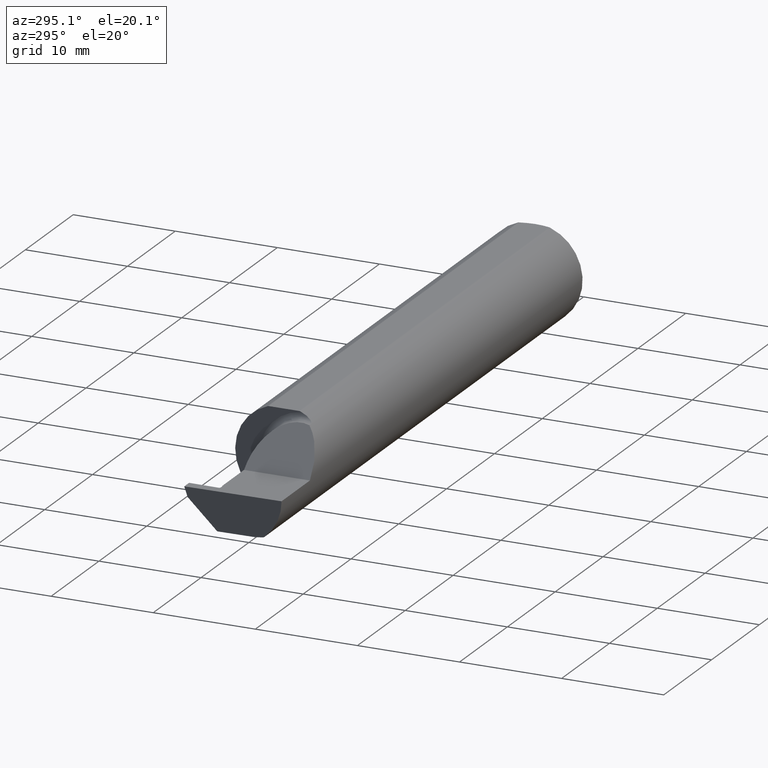
[diagram: clean part render]
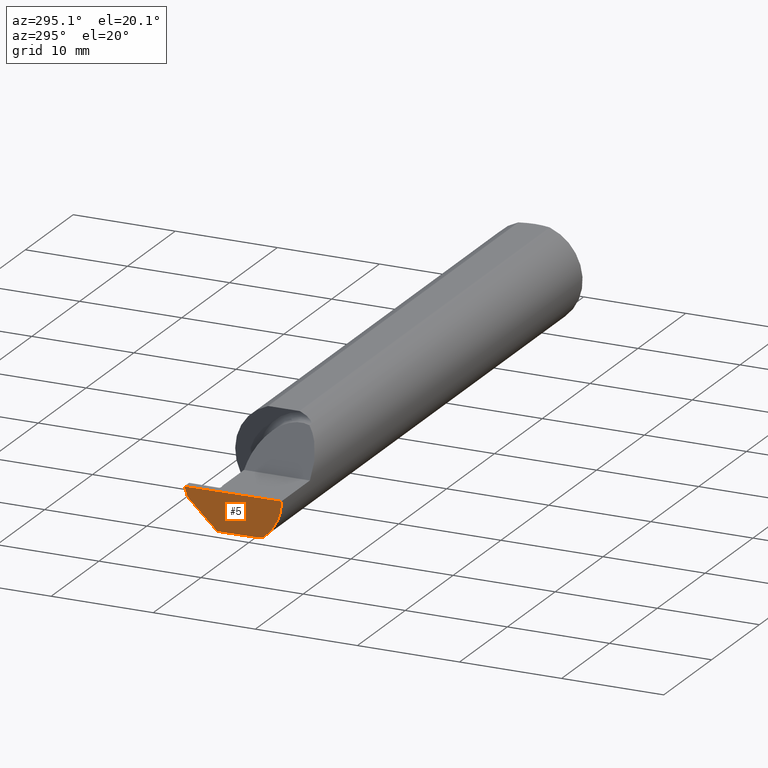
[diagram: same view with one face highlighted and labeled with its STEP entity id]
A machine part, auxiliary view. The second image highlights one B-rep face of the part: STEP entity #5.
In plain terms, the highlighted planar face has unit normal (0.9995, 0.0174, 0.0262).
Its self-contained STEP definition (entity closure, byte-faithful):
#5 = ADVANCED_FACE ( 'NONE', ( #96 ), #616, .F. ) ;
#10 = EDGE_CURVE ( 'NONE', #87, #370, #352, .T. ) ;
#38 = DIRECTION ( 'NONE',  ( 0.01745240643727703073, -0.9998476951563912696, 0.000000000000000000 ) ) ;
#39 = EDGE_CURVE ( 'NONE', #147, #582, #898, .T. ) ;
#43 = VECTOR ( 'NONE', #602, 39.37007874015748854 ) ;
#87 = VERTEX_POINT ( 'NONE', #818 ) ;
#96 = FACE_OUTER_BOUND ( 'NONE', #597, .T. ) ;
#102 = VECTOR ( 'NONE', #345, 39.37007874015748143 ) ;
#108 = EDGE_CURVE ( 'NONE', #123, #686, #340, .T. ) ;
#123 = VERTEX_POINT ( 'NONE', #551 ) ;
#146 = EDGE_CURVE ( 'NONE', #582, #123, #277, .T. ) ;
#147 = VERTEX_POINT ( 'NONE', #564 ) ;
#162 = DIRECTION ( 'NONE',  ( -0.02618093305822682959, 0.000000000000000000, 0.9996572206232497981 ) ) ;
#249 = CARTESIAN_POINT ( 'NONE',  ( -2.493506715846705468, -0.1873499999999999888, 0.000000000000000000 ) ) ;
#277 = LINE ( 'NONE', #417, #102 ) ;
#340 = LINE ( 'NONE', #625, #751 ) ;
#345 = DIRECTION ( 'NONE',  ( 0.03084697155452398656, -0.7067702824630919256, -0.7067702824630897052 ) ) ;
#352 =( BOUNDED_CURVE ( )  B_SPLINE_CURVE ( 3, ( #894, #753, #621, #249 ),
 .UNSPECIFIED., .F., .T. ) 
 B_SPLINE_CURVE_WITH_KNOTS ( ( 4, 4 ),
 ( 0.08839520912052888091, 0.9829226100289757406 ),
 .UNSPECIFIED. ) 
 CURVE ( )  GEOMETRIC_REPRESENTATION_ITEM ( )  RATIONAL_B_SPLINE_CURVE ( ( 1.000000000000000000, 0.9344226172588803170, 0.9344226172588803170, 1.000000000000000000 ) ) 
 REPRESENTATION_ITEM ( '' )  );
#364 = AXIS2_PLACEMENT_3D ( 'NONE', #669, #610, #162 ) ;
#370 = VERTEX_POINT ( 'NONE', #378 ) ;
#378 = CARTESIAN_POINT ( 'NONE',  ( -2.493506715846705468, -0.1873499999999999888, 0.000000000000000000 ) ) ;
#383 = CARTESIAN_POINT ( 'NONE',  ( -2.499908263133603814, 0.1837144758152614021, -0.002879247381999359371 ) ) ;
#417 = CARTESIAN_POINT ( 'NONE',  ( -2.498695265107655938, 0.1701492753368748778, -0.04015377620627467309 ) ) ;
#446 = EDGE_CURVE ( 'NONE', #147, #370, #494, .T. ) ;
#458 = CARTESIAN_POINT ( 'NONE',  ( -2.491393556036329837, -0.08334999999999985476, -0.1499999999999999944 ) ) ;
#472 = ORIENTED_EDGE ( 'NONE', *, *, #10, .T. ) ;
#487 = ORIENTED_EDGE ( 'NONE', *, *, #146, .T. ) ;
#494 = LINE ( 'NONE', #689, #916 ) ;
#517 = ORIENTED_EDGE ( 'NONE', *, *, #108, .T. ) ;
#551 = CARTESIAN_POINT ( 'NONE',  ( -2.493901029378150724, 0.06030305154314920951, -0.1499999999999999944 ) ) ;
#564 = CARTESIAN_POINT ( 'NONE',  ( -2.500000000000000000, 0.1846500000000000363, 0.000000000000000000 ) ) ;
#582 = VERTEX_POINT ( 'NONE', #801 ) ;
#597 = EDGE_LOOP ( 'NONE', ( #837, #472, #865, #754, #487, #517 ) ) ;
#600 = CARTESIAN_POINT ( 'NONE',  ( -2.490903355898018923, -0.1172600179964007477, -0.1461167706989302817 ) ) ;
#602 = DIRECTION ( 'NONE',  ( 0.03028809442608968241, -0.3088752205991470157, -0.9506201814793669991 ) ) ;
#610 = DIRECTION ( 'NONE',  ( 0.9995050723230146650, 0.01744642593347454917, 0.02617694830787320806 ) ) ;
#616 = PLANE ( 'NONE',  #364 ) ;
#621 = CARTESIAN_POINT ( 'NONE',  ( -2.491992669264299742, -0.1873499999999999888, -0.05781030015605114619 ) ) ;
#625 = CARTESIAN_POINT ( 'NONE',  ( -2.494809345111306254, 0.1123404250442413682, -0.1499999999999999944 ) ) ;
#664 = EDGE_CURVE ( 'NONE', #87, #686, #862, .T. ) ;
#669 = CARTESIAN_POINT ( 'NONE',  ( -2.500000000000000000, 0.1846500000000000363, 0.000000000000000000 ) ) ;
#684 = CARTESIAN_POINT ( 'NONE',  ( -2.491393556036329837, -0.08334999999999985476, -0.1499999999999999944 ) ) ;
#686 = VERTEX_POINT ( 'NONE', #684 ) ;
#689 = CARTESIAN_POINT ( 'NONE',  ( -2.500000000000000000, 0.1846500000000000363, 0.000000000000000000 ) ) ;
#751 = VECTOR ( 'NONE', #904, 39.37007874015748143 ) ;
#753 = CARTESIAN_POINT ( 'NONE',  ( -2.491063981715931686, -0.1623470442677541759, -0.1099340280425337851 ) ) ;
#754 = ORIENTED_EDGE ( 'NONE', *, *, #39, .T. ) ;
#801 = CARTESIAN_POINT ( 'NONE',  ( -2.498789266617083449, 0.1723030515431495657, -0.03799999999999999212 ) ) ;
#811 = CARTESIAN_POINT ( 'NONE',  ( -2.491194102659540111, -0.09477667630339417504, -0.1499999999999999667 ) ) ;
#818 = CARTESIAN_POINT ( 'NONE',  ( -2.490903355898018923, -0.1172600179964007477, -0.1461167706989302817 ) ) ;
#837 = ORIENTED_EDGE ( 'NONE', *, *, #664, .F. ) ;
#862 =( BOUNDED_CURVE ( )  B_SPLINE_CURVE ( 3, ( #600, #880, #811, #458 ),
 .UNSPECIFIED., .F., .T. ) 
 B_SPLINE_CURVE_WITH_KNOTS ( ( 4, 4 ),
 ( 0.3598356817164767296, 0.5878737167659224827 ),
 .UNSPECIFIED. ) 
 CURVE ( )  GEOMETRIC_REPRESENTATION_ITEM ( )  RATIONAL_B_SPLINE_CURVE ( ( 1.000000000000000000, 0.9956712472009929815, 0.9956712472009929815, 1.000000000000000000 ) ) 
 REPRESENTATION_ITEM ( '' )  );
#865 = ORIENTED_EDGE ( 'NONE', *, *, #446, .F. ) ;
#880 = CARTESIAN_POINT ( 'NONE',  ( -2.491029992219911282, -0.1061291577212409715, -0.1486999626928445506 ) ) ;
#894 = CARTESIAN_POINT ( 'NONE',  ( -2.490903355898018923, -0.1172600179964007477, -0.1461167706989302817 ) ) ;
#898 = LINE ( 'NONE', #383, #43 ) ;
#904 = DIRECTION ( 'NONE',  ( 0.01745240643727703073, -0.9998476951563912696, 0.000000000000000000 ) ) ;
#916 = VECTOR ( 'NONE', #38, 39.37007874015748143 ) ;